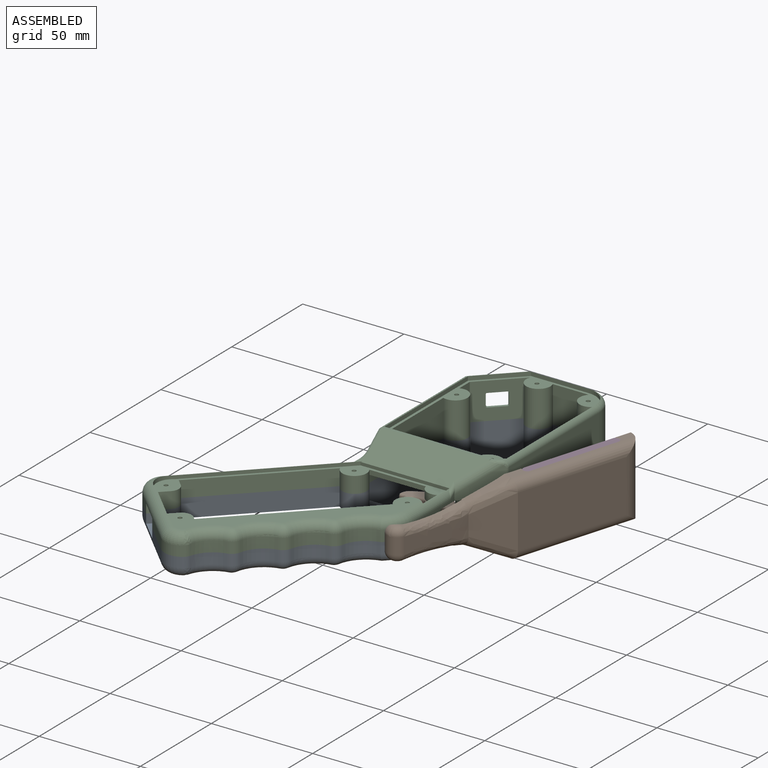
[diagram: assembled view]
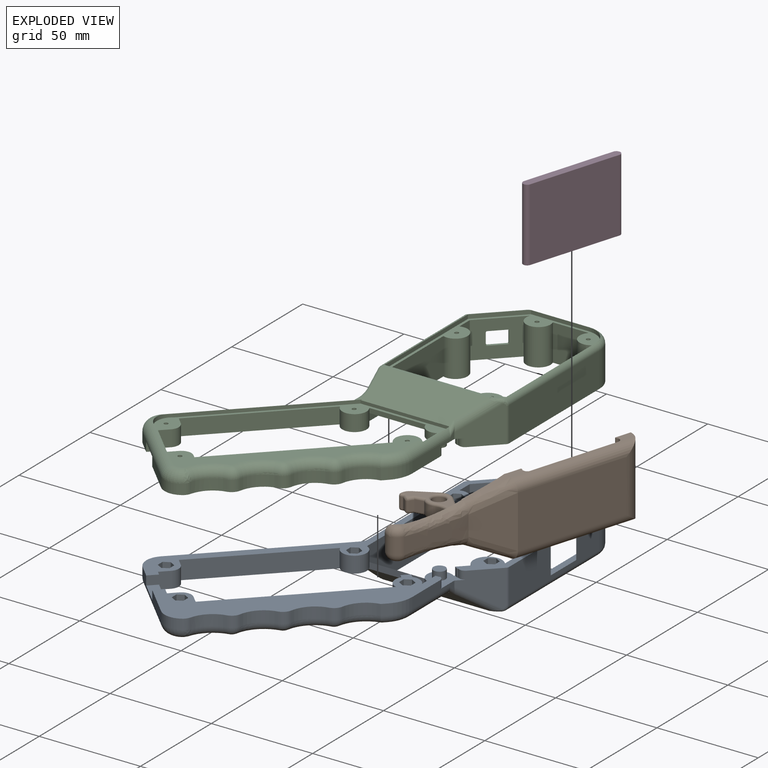
[diagram: exploded view]
GUIDED TOUR — MATED ASSEMBLY WITH SUBASSEMBLIES (Onshape document 577f6a3ee4b021f10afeb08b, AutoMate assembly 577f6a3ee4b021f10afeb08b_17257736771b3b4b7b890b39_b17cec0c7d5b5c49a6e8328c_default)

This assembly has 8 component occurrences arranged in 4 top-level units: 2 individual components plus 2 subassemblies (S0, S1). The tour has two levels: first the top level, where each subassembly is treated as one rigid unit; then each subassembly is toured internally in its own section (nesting deeper than one subassembly level is flattened into its subassembly's section).

Components are labeled P0..P7 across the whole record; subassembly units are labeled S0..S1. A mate is a constraint between two units; its type names the relative motion it leaves free:
  FASTENED — locks the two components together rigidly (no relative motion),
  REVOLUTE — leaves rotation about the listed axis free (a hinge).
Axis/direction vectors are unit vectors and 'through' points are millimeter coordinates, both in the assembly's world frame.

TOP-LEVEL MATES (between units; each subassembly's internal mates are listed in its own section)
  1. FASTENED "Fastened 4": P5 <-> P2, direction (0.000, 0.000, -1.000) through (50.64, 50.34, -117.17) mm
  2. REVOLUTE "Revolute 1": P2 <-> S1, axis (0.000, 0.000, 1.000) through (19.60, 32.45, -131.42) mm
  3. FASTENED "Fastened 3": S1 <-> S0, direction (0.000, 0.000, -1.000) through (-17.86, 34.20, -135.42) mm

TOP-LEVEL ASSEMBLY ORDER
  1. P2 — the base component [order heuristic]
  2. S1 [order heuristic]
  3. P5 [order heuristic]
  4. S0 [order heuristic]
Order-tag legend:
  [order heuristic] — this assembly is geometrically interlocked (no collision-free removal order exists), so components are listed in mate-graph order; insertion feasibility is not verified.

Of the 8 component occurrences, 1 carries the full construction recipe — the FeatureScript program that regenerates the part's solid from scratch; the rest are supplied as boundary geometry only. Each toured unit is shown spotlighted twice — assembled, then exploded with a leader line back to its socket (green = recipe-attached component, orange = geometry-only, blue = subassembly unit; the rest desaturated gray).
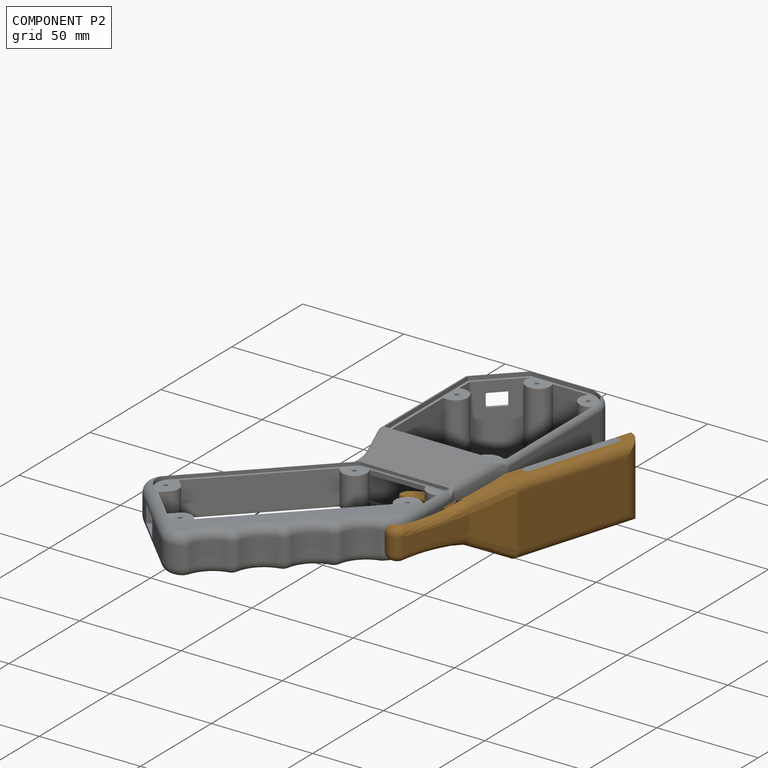
[diagram: component P2 — assembled]
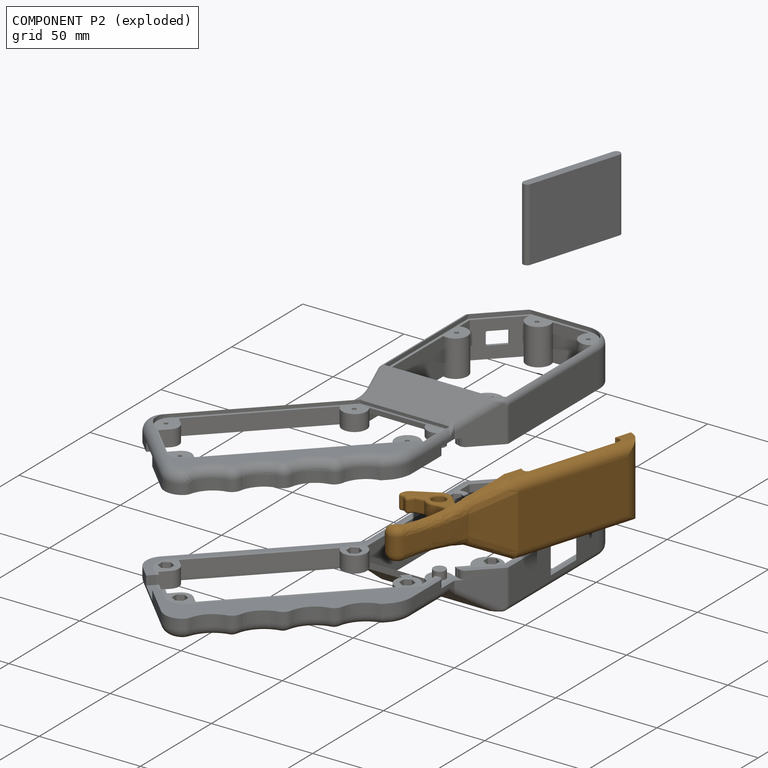
[diagram: component P2 — exploded]
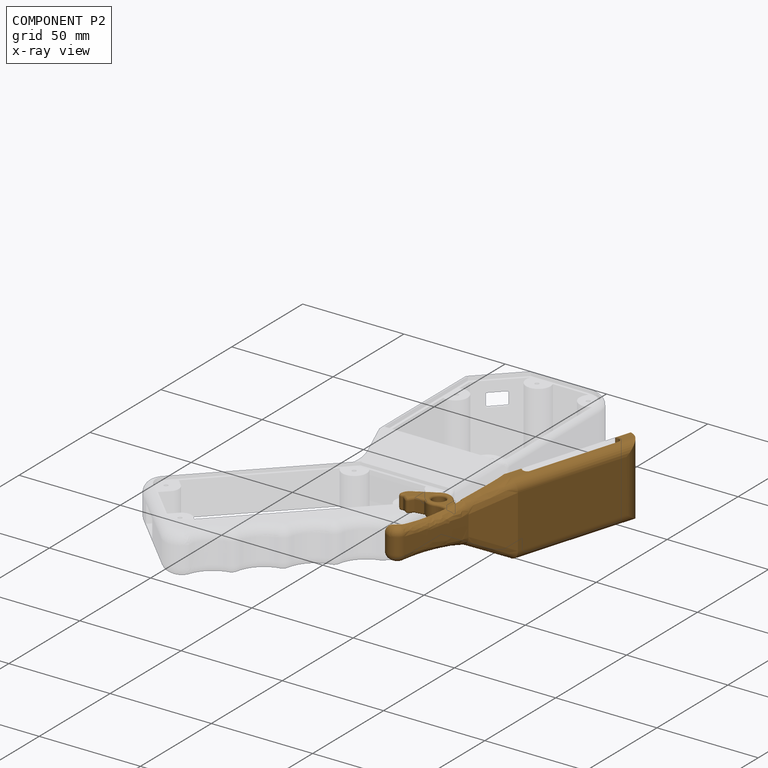
[diagram: component P2 — x-ray view]
COMPONENT P2 — geometry summary (no construction recipe available for this part):
  bounding box: 125.0 x 47.5 x 46.2 mm
  B-rep topology: 1 solid, 109 faces, 542 edges
  volume: 21061 mm^3 (8% of its bounding box)
  symmetry: mirror-symmetric across its z mid-plane
Held by: FASTENED mate "Fastened 4" to P5; REVOLUTE mate "Revolute 1" to P3.
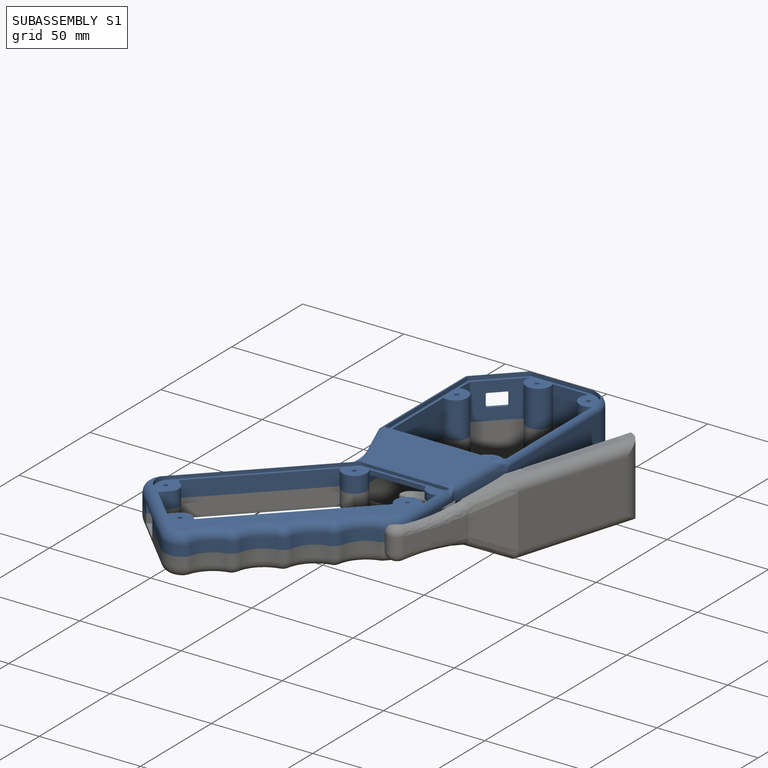
[diagram: subassembly S1 — assembled]
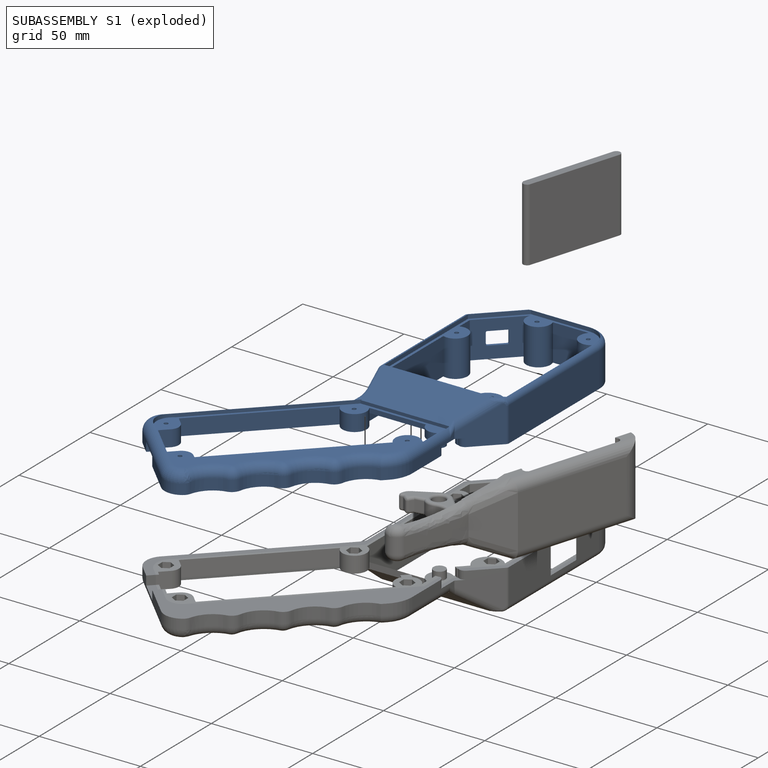
[diagram: subassembly S1 — exploded]
SUBASSEMBLY S1 — 3 components (P3, P6, P7), of which 0 recipe-attached; toured below.
Held by: REVOLUTE mate "Revolute 1" to P2; FASTENED mate "Fastened 3" to S0.
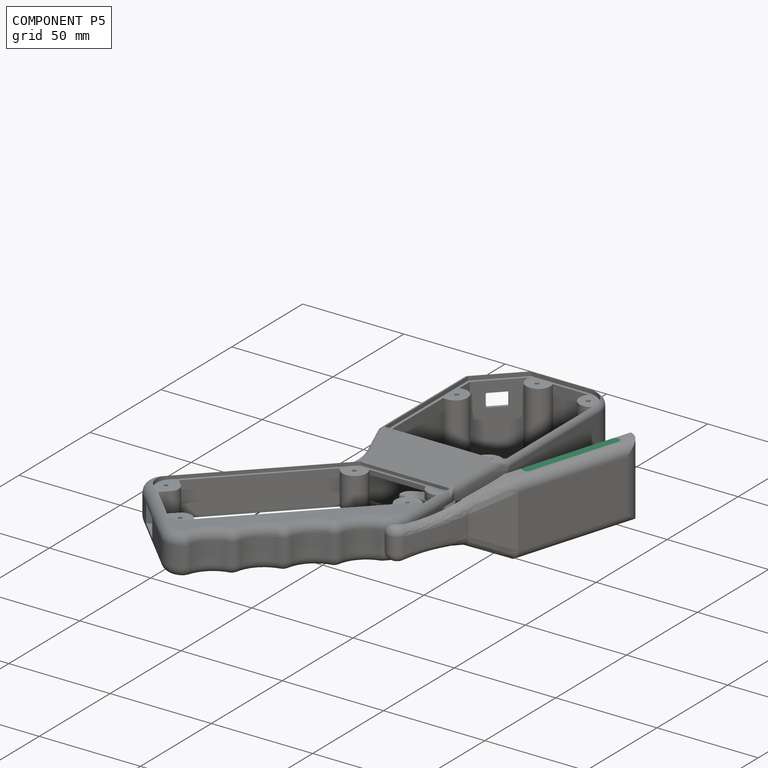
[diagram: component P5 — assembled]
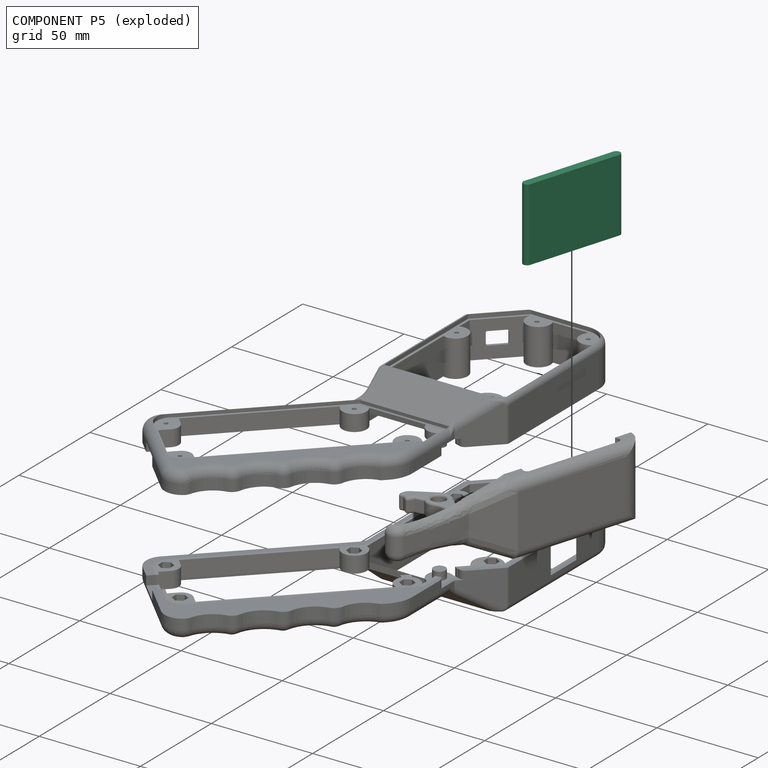
[diagram: component P5 — exploded]
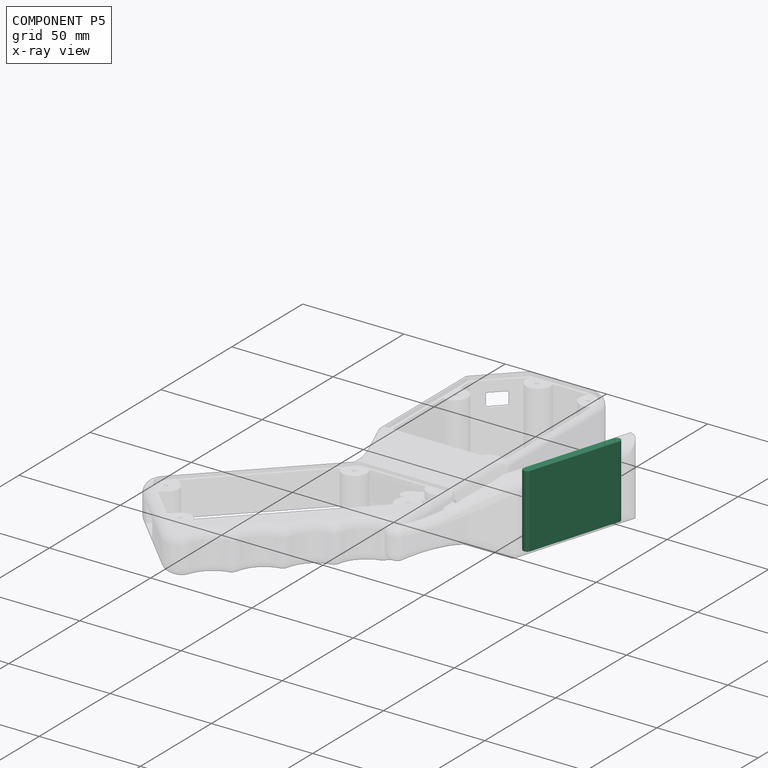
[diagram: component P5 — x-ray view]
COMPONENT P5 — recipe-attached (CADFS 00192847, mesh-verified: the recipe's output STEP matches this component's geometry to below the mesh-comparison resolution (tessellation chordal tolerance ~0.0924 mm)).
Held by: FASTENED mate "Fastened 4" to P2.
Construction recipe (FeatureScript — the CAD program that rebuilds this solid; sketch coordinates are in the units given by the * unit suffixes, e.g. mm):

FeatureScript 1732;
import(path : "onshape/std/geometry.fs", version : "1732.0");
import(path : "onshape/std/common.fs", version : "1732.0");
const mm = millimeter;
const VERTEX = EntityType.VERTEX;
const EDGE = EntityType.EDGE;
const FACE = EntityType.FACE;
const BODY = EntityType.BODY;
function v(x, y){return vector(x, y);}
function OD(order){return orderDisambiguation(order);}
function OSD(set){return originalSetDisambiguation(set);}
function TD(topology){return topologyDisambiguation(topology);}
function TDD(query){return trueDependencyDisambiguation(query);}
function sQuery(a, b, c) {return sketchEntityQuery(a, b, c);}

annotation { "Feature Type Name" : "Feature", "Feature Type Description" : "" }
export const myFeature = defineFeature(function(context is Context, id is Id, definition is map)
    precondition{}
    {
        {
            var Q0;
            Q0=qCreatedBy(makeId("Top.planeOp"),FACE);
            var sketch = newSketch(context, id + "F0", { "sketchPlane" : qUnion([Q0])});
            skArc(sketch, "E0", {"start": v(2, 22.4) * mm, "mid": v(0, 24.4) * mm, "end": v(-2, 22.4) * mm});
            skArc(sketch, "E1", {"start": v(-2, -23.4) * mm, "mid": v(0, -25.4) * mm, "end": v(2, -23.4) * mm});
            skLineSegment(sketch, "E2", {"start": v(2, 22.4) * mm, "end": v(2, -23.4) * mm});
            skLineSegment(sketch, "E3", {"start": v(-2, 22.4) * mm, "end": v(-2, -23.4) * mm});
            skSolve(sketch);
        }
        {
            var Q0;
            Q0=makeQuery(id+"F0.imprint","IMPRINT",FACE,{"disambiguationData":[TD([[makeQuery(id+"F0.imprint","IMPRINT",EDGE,{"derivedFrom":sQuery(id+"F0.wireOp",EDGE,"E0")}),1.0]])]});
            extrude(context, id + "F1", {"entities" : qUnion([Q0]), "depth" : 36 * mm, "symmetric" : true});
        }
    });
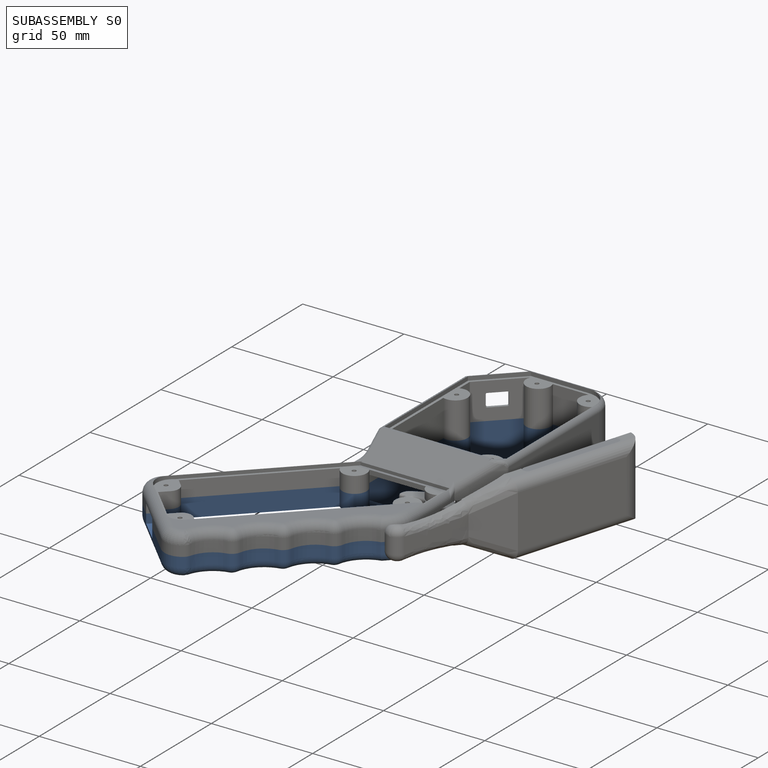
[diagram: subassembly S0 — assembled]
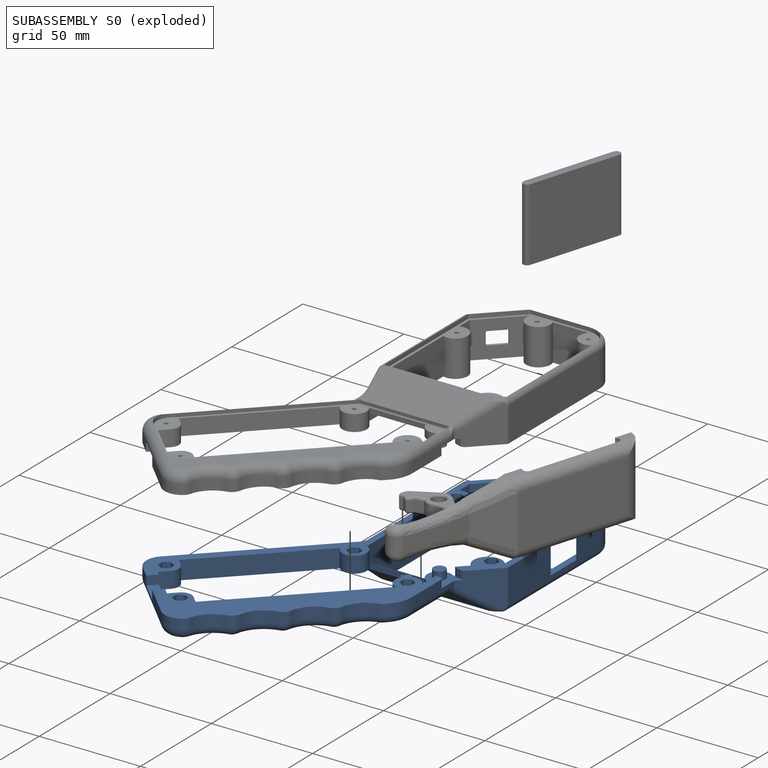
[diagram: subassembly S0 — exploded]
SUBASSEMBLY S0 — 3 components (P0, P1, P4), of which 0 recipe-attached; toured below.
Held by: FASTENED mate "Fastened 3" to S1.
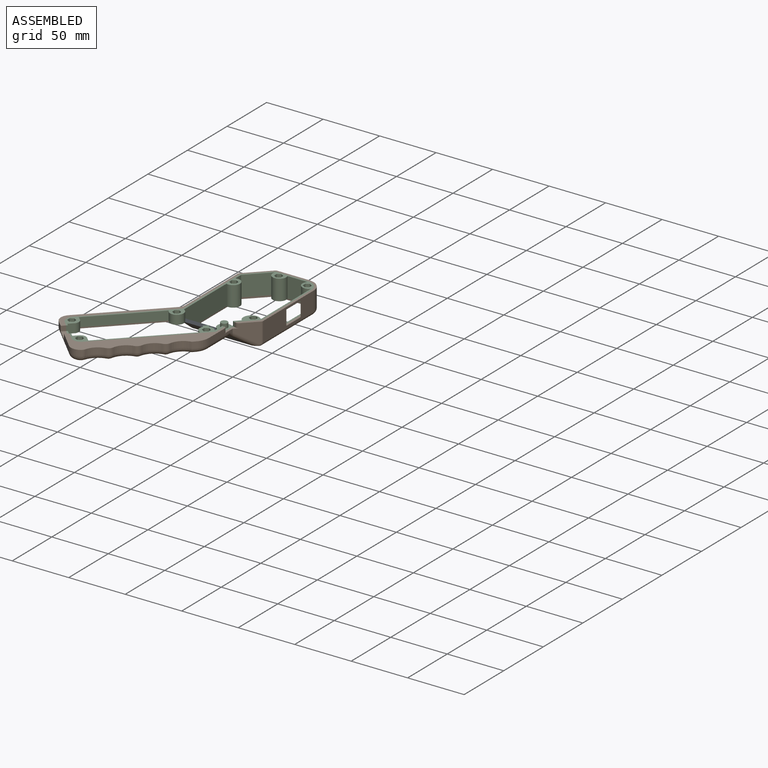
[diagram: subassembly S0 — assembled view]
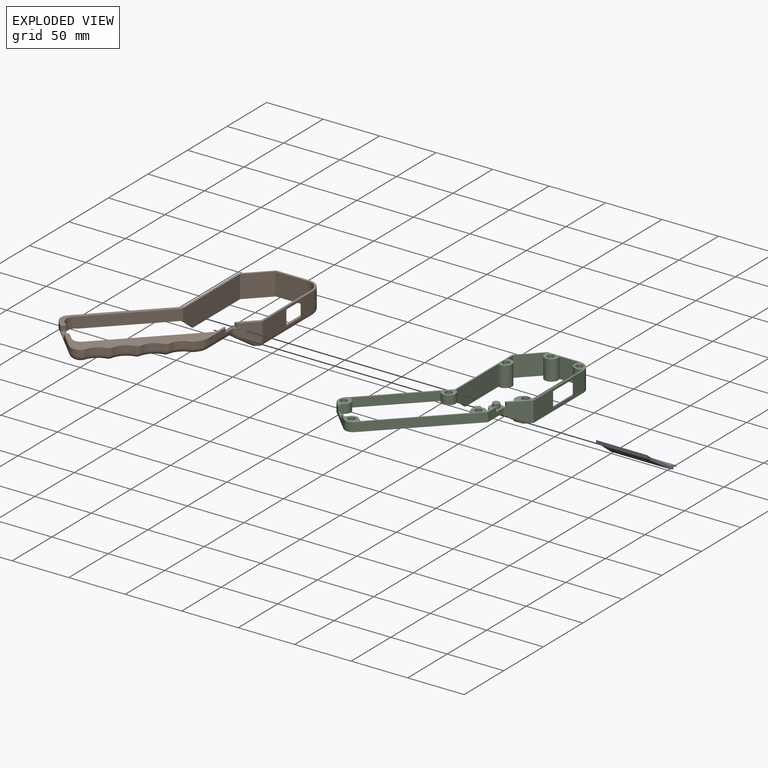
[diagram: subassembly S0 — exploded view]
SUBASSEMBLY S0 TOUR — 3 components, shown here in isolation at its own camera.

INTERNAL MATES
  1. FASTENED "Fastened 2": P0 <-> P1, direction (-1.000, 0.000, 0.000) through (-17.86, 34.20, -145.89) mm
  2. FASTENED "Fastened 1": P1 <-> P4, direction (-1.000, 0.000, 0.000) through (39.94, 50.94, -135.42) mm
  3. FASTENED "Fastened 2": P0 <-> P1, direction (-1.000, 0.000, 0.000) through (-17.86, 34.20, -145.89) mm
  4. FASTENED "Fastened 1": P1 <-> P4, direction (-1.000, 0.000, 0.000) through (39.94, 50.94, -135.42) mm

ASSEMBLY ORDER (within the subassembly)
  1. P1 — the base component [order heuristic]
  2. P4 — core [order heuristic]
  3. P0 [order verified]
(P0 verified with a relaxed clearance tolerance: the source model stores slight part interference there.)
Order-tag legend:
  [order verified] — this step's position reverses a verified removal order: the component was checked to insert without passing through the ones already placed.
  [order heuristic] — the first 2 components form the assembly's core: parts whose collision-free extraction could not be verified, listed in mate-graph order.
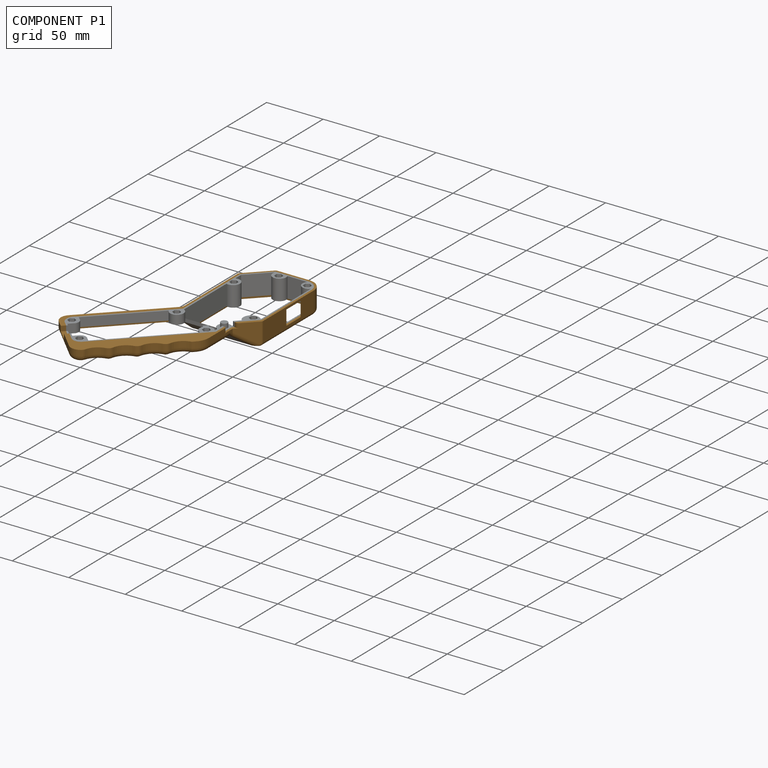
[diagram: component P1 — assembled]
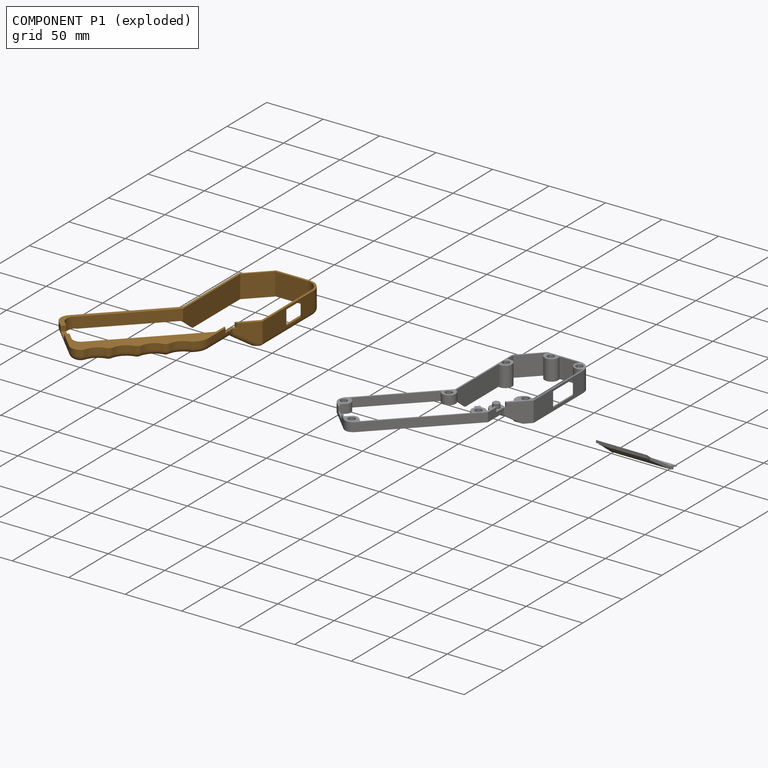
[diagram: component P1 — exploded]
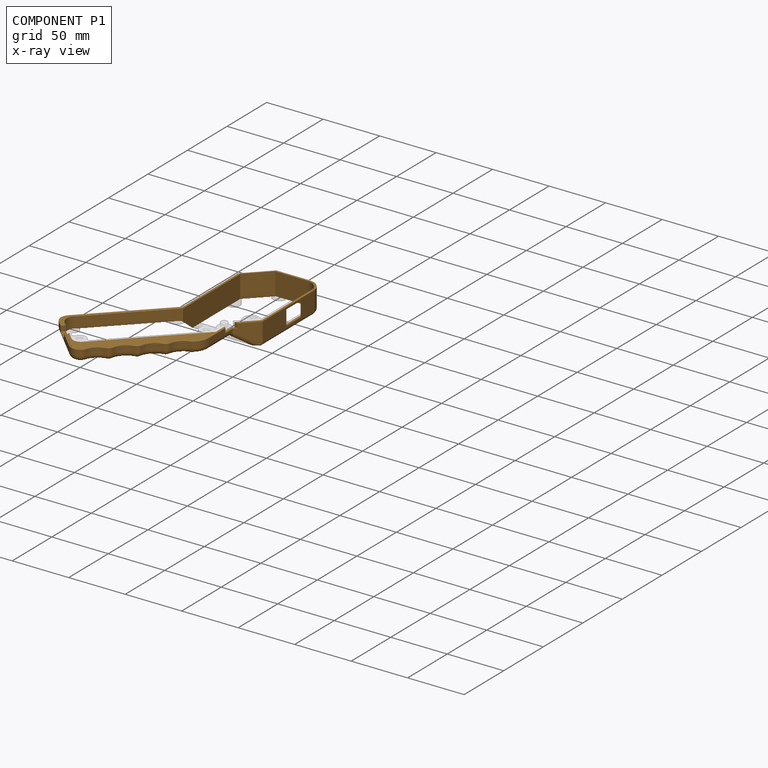
[diagram: component P1 — x-ray view]
COMPONENT P1 — geometry summary (no construction recipe available for this part):
  bounding box: 195.8 x 125.0 x 21.9 mm
  B-rep topology: 1 solid, 89 faces, 476 edges
  volume: 25069 mm^3 (5% of its bounding box)
Held by: FASTENED mate "Fastened 2" to P0; FASTENED mate "Fastened 1" to P4; FASTENED mate "Fastened 2" to P0; FASTENED mate "Fastened 1" to P4.
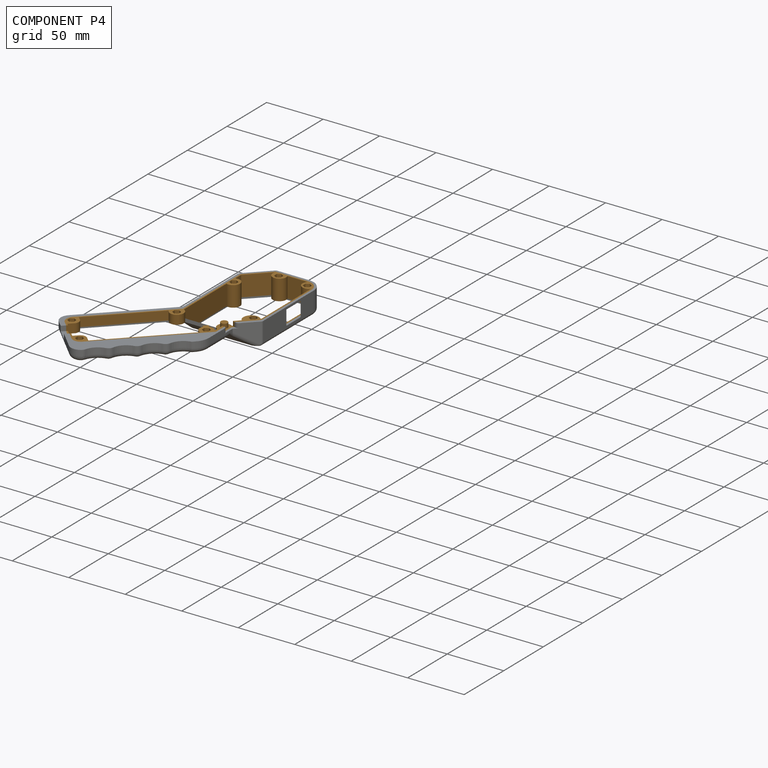
[diagram: component P4 — assembled]
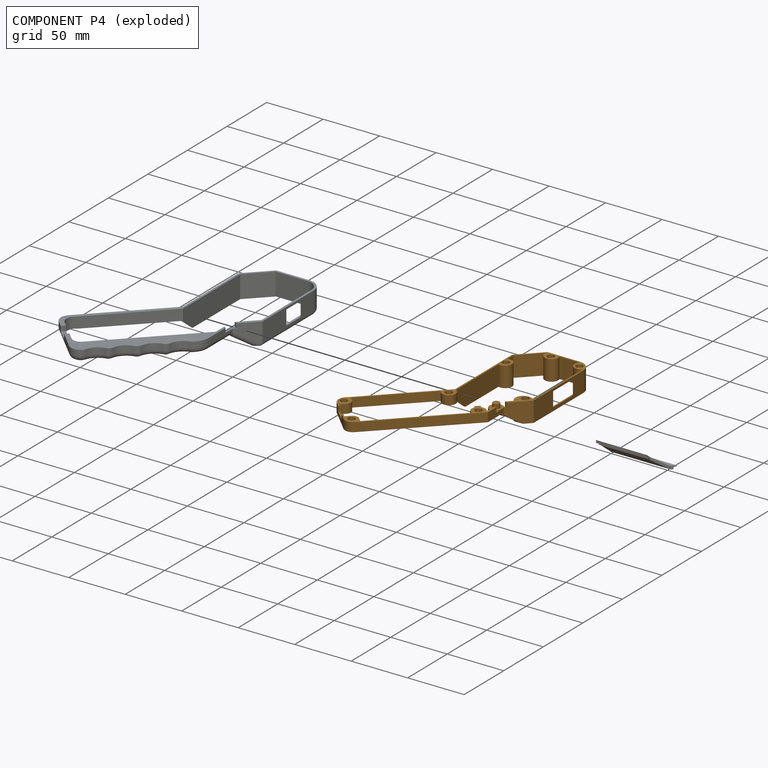
[diagram: component P4 — exploded]
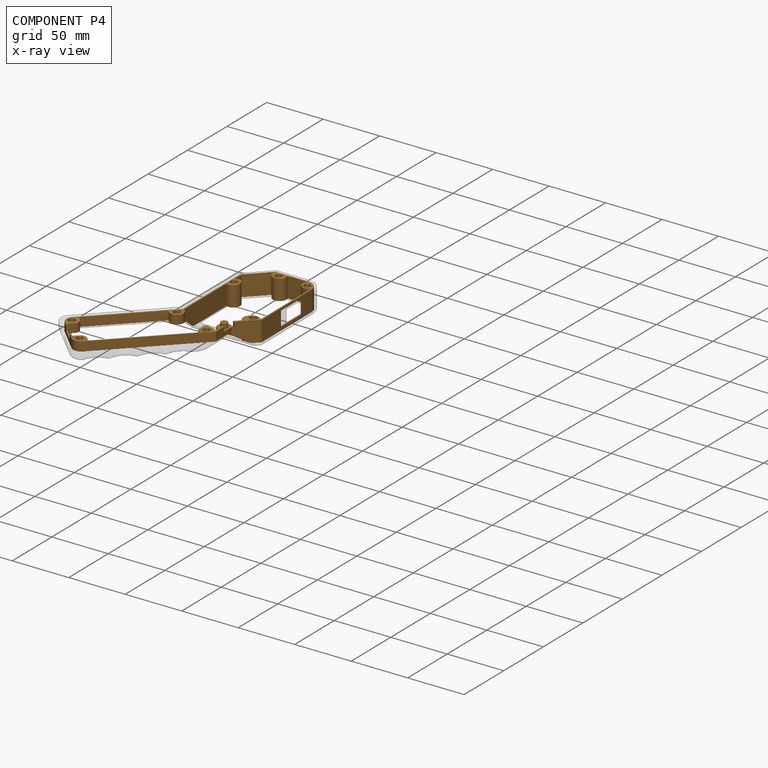
[diagram: component P4 — x-ray view]
COMPONENT P4 — geometry summary (no construction recipe available for this part):
  bounding box: 180.7 x 117.2 x 18.0 mm
  B-rep topology: 1 solid, 121 faces, 678 edges
  volume: 15112 mm^3 (4% of its bounding box)
Held by: FASTENED mate "Fastened 1" to P1; FASTENED mate "Fastened 1" to P1.
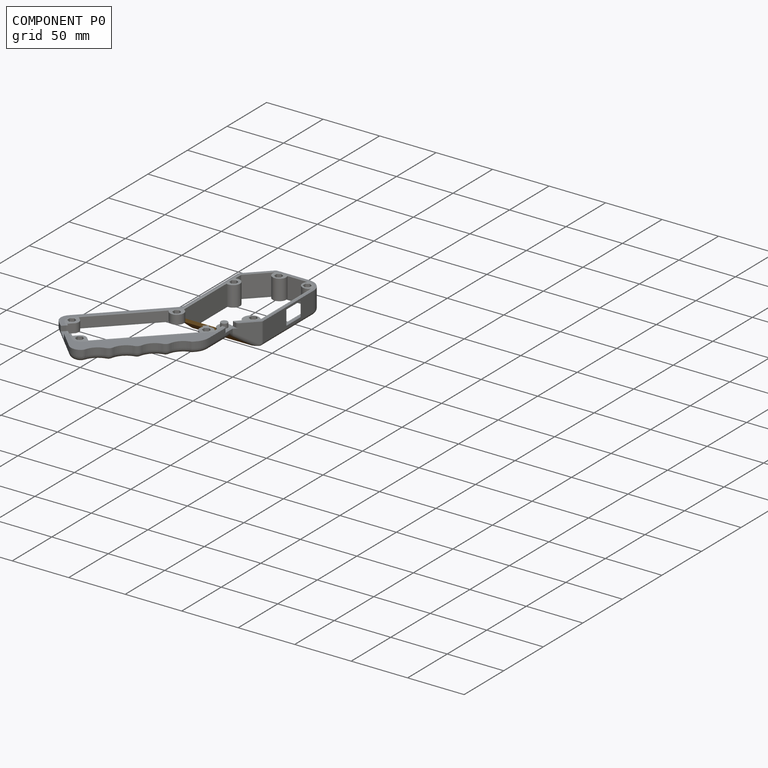
[diagram: component P0 — assembled]
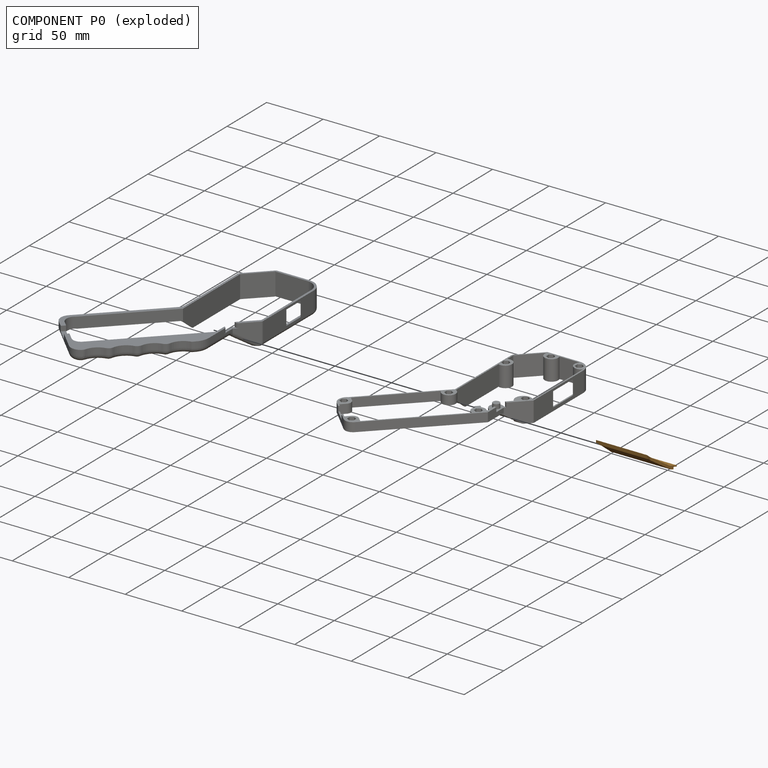
[diagram: component P0 — exploded]
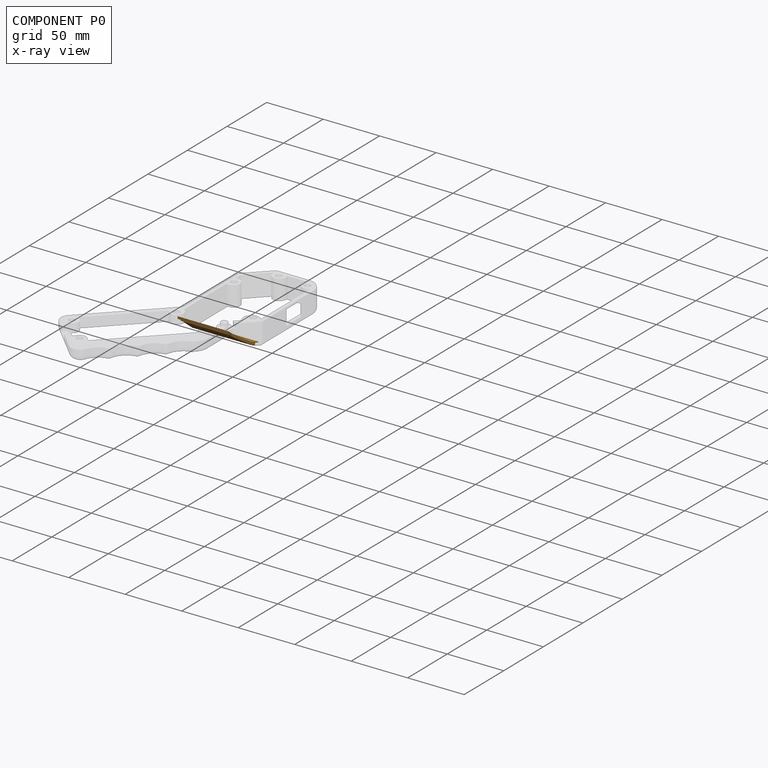
[diagram: component P0 — x-ray view]
COMPONENT P0 — geometry summary (no construction recipe available for this part):
  bounding box: 58.9 x 17.9 x 14.3 mm
  B-rep topology: 1 solid, 15 faces, 78 edges
  volume: 2029 mm^3 (13% of its bounding box)
Held by: FASTENED mate "Fastened 2" to P1; FASTENED mate "Fastened 2" to P1.
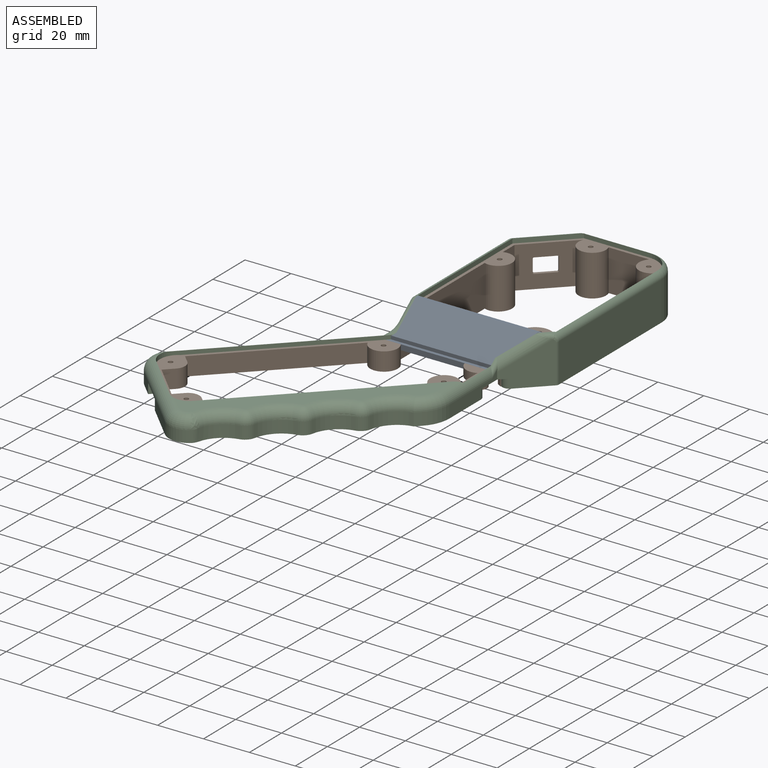
[diagram: subassembly S1 — assembled view]
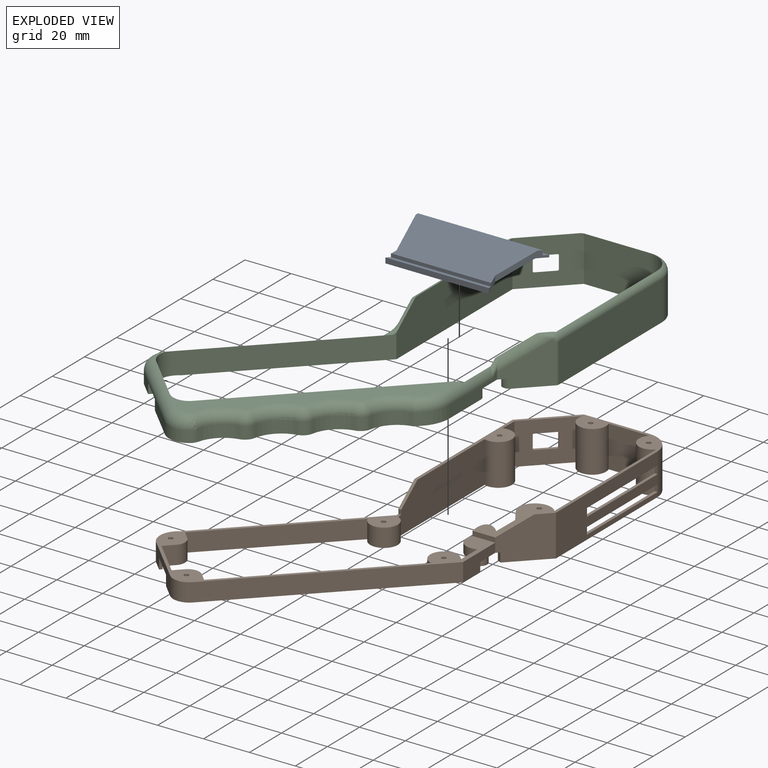
[diagram: subassembly S1 — exploded view]
SUBASSEMBLY S1 TOUR — 3 components, shown here in isolation at its own camera.

INTERNAL MATES
  1. FASTENED "Fastened 1": P6 <-> P7, direction (0.000, 0.000, -1.000) through (-17.86, 34.20, -135.42) mm
  2. FASTENED "Fastened 2": P3 <-> P7, direction (0.000, -0.621, 0.784) through (-17.86, 34.20, -124.94) mm

ASSEMBLY ORDER (within the subassembly)
  1. P7 — the base component [order heuristic]
  2. P6 — core [order heuristic]
  3. P3 [order verified]
(P3 verified with a relaxed clearance tolerance: the source model stores slight part interference there.)
Order-tag legend:
  [order verified] — this step's position reverses a verified removal order: the component was checked to insert without passing through the ones already placed.
  [order heuristic] — the first 2 components form the assembly's core: parts whose collision-free extraction could not be verified, listed in mate-graph order.
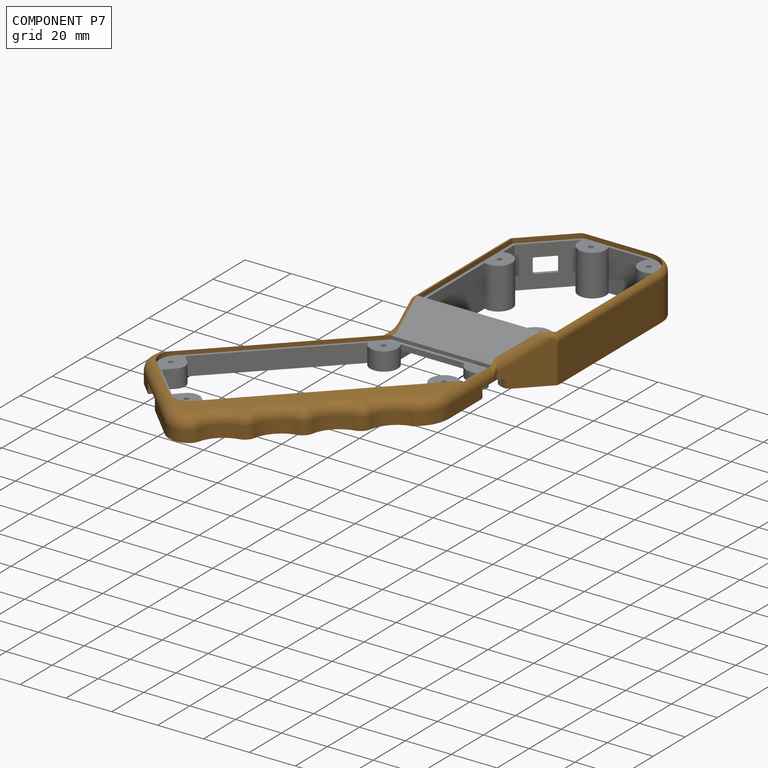
[diagram: component P7 — assembled]
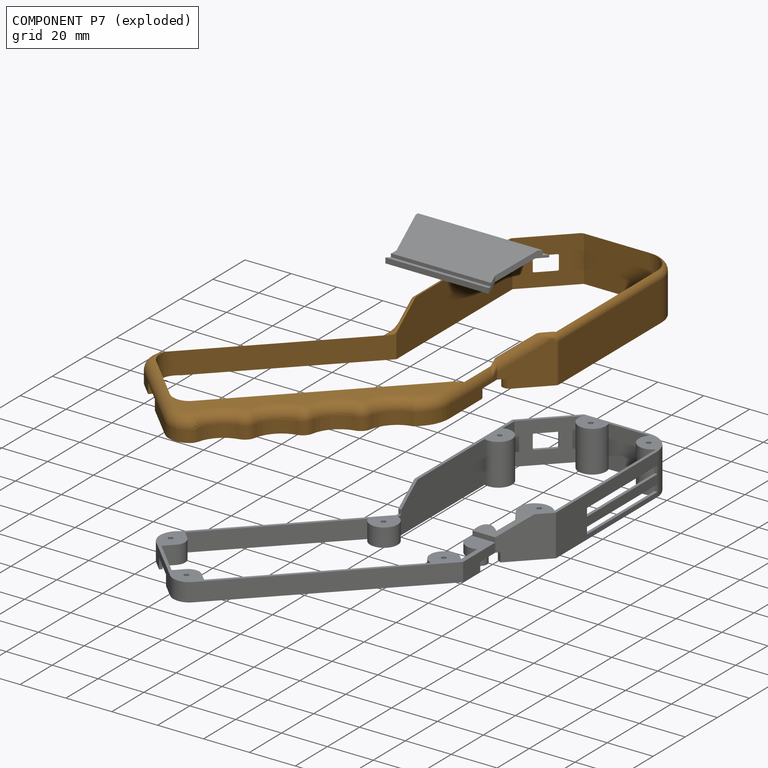
[diagram: component P7 — exploded]
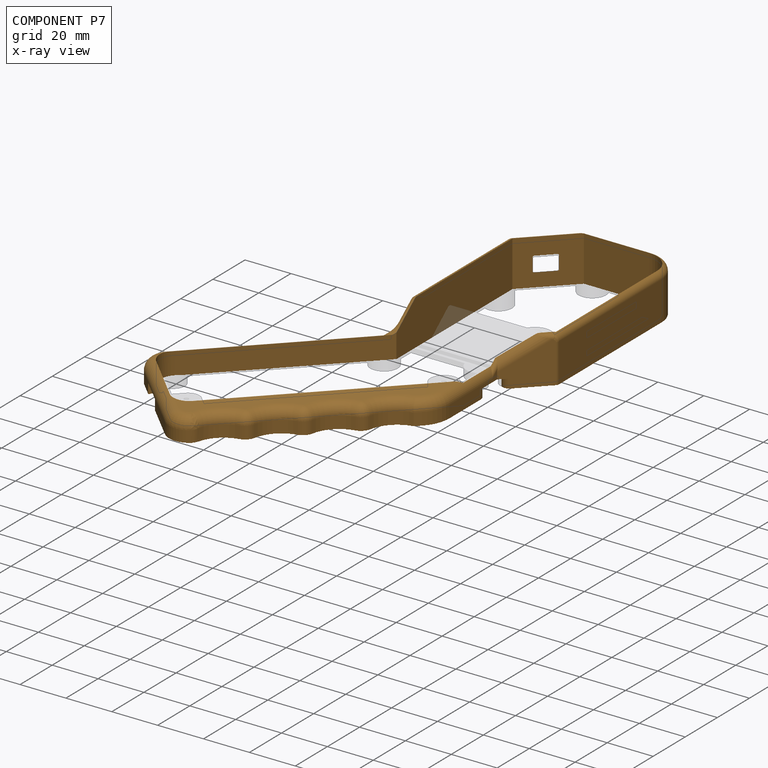
[diagram: component P7 — x-ray view]
COMPONENT P7 — geometry summary (no construction recipe available for this part):
  bounding box: 195.8 x 125.0 x 21.9 mm
  B-rep topology: 1 solid, 93 faces, 500 edges
  volume: 25441 mm^3 (5% of its bounding box)
Held by: FASTENED mate "Fastened 1" to P6; FASTENED mate "Fastened 2" to P3.
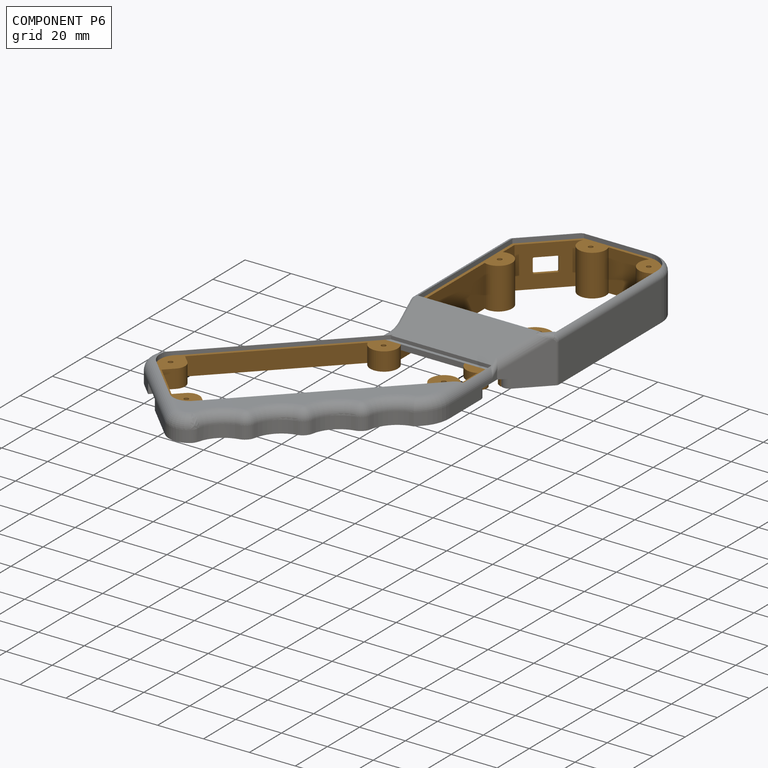
[diagram: component P6 — assembled]
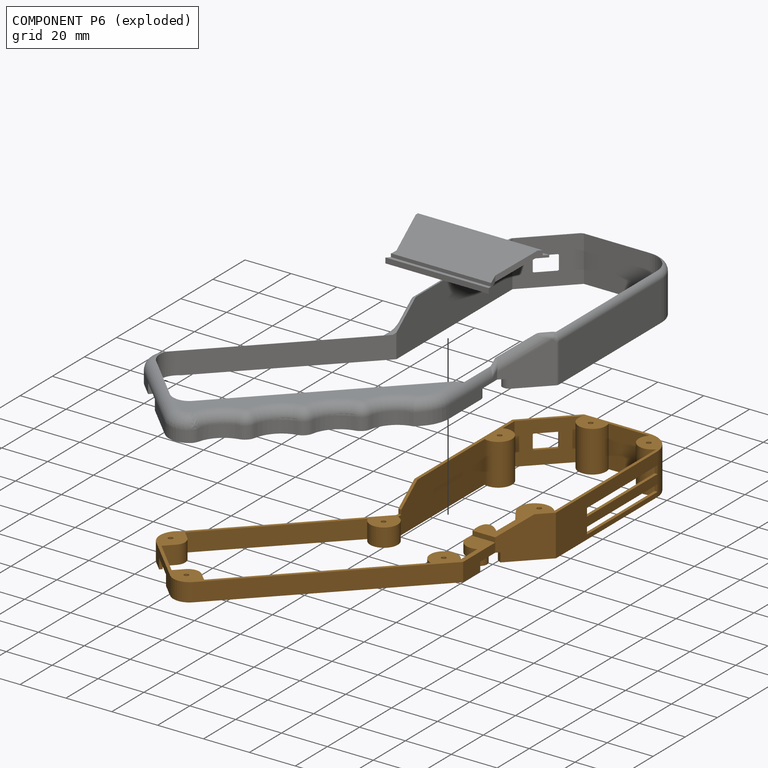
[diagram: component P6 — exploded]
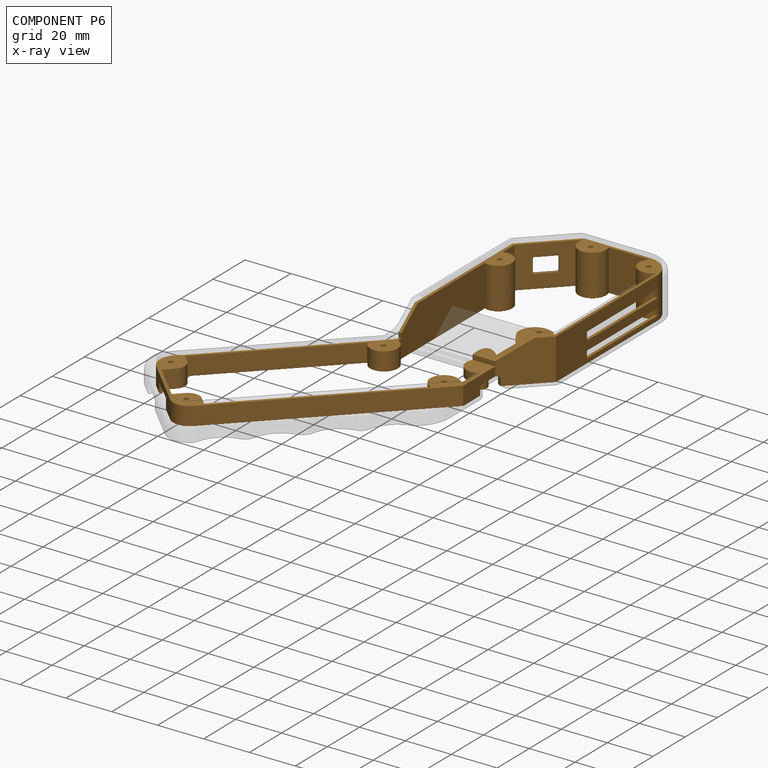
[diagram: component P6 — x-ray view]
COMPONENT P6 — geometry summary (no construction recipe available for this part):
  bounding box: 180.7 x 117.2 x 18.0 mm
  B-rep topology: 1 solid, 133 faces, 762 edges
  volume: 15119 mm^3 (4% of its bounding box)
Held by: FASTENED mate "Fastened 1" to P7.
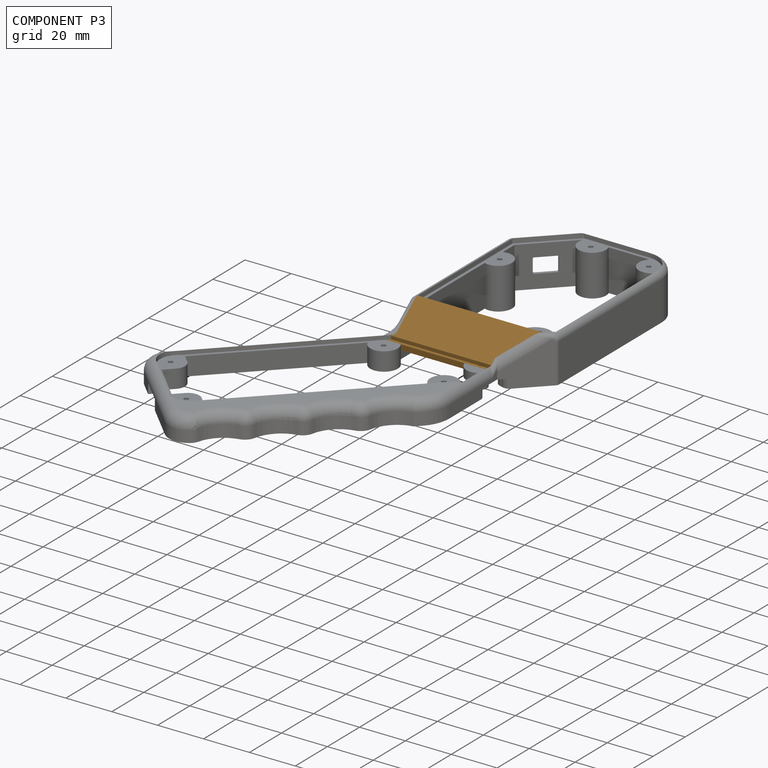
[diagram: component P3 — assembled]
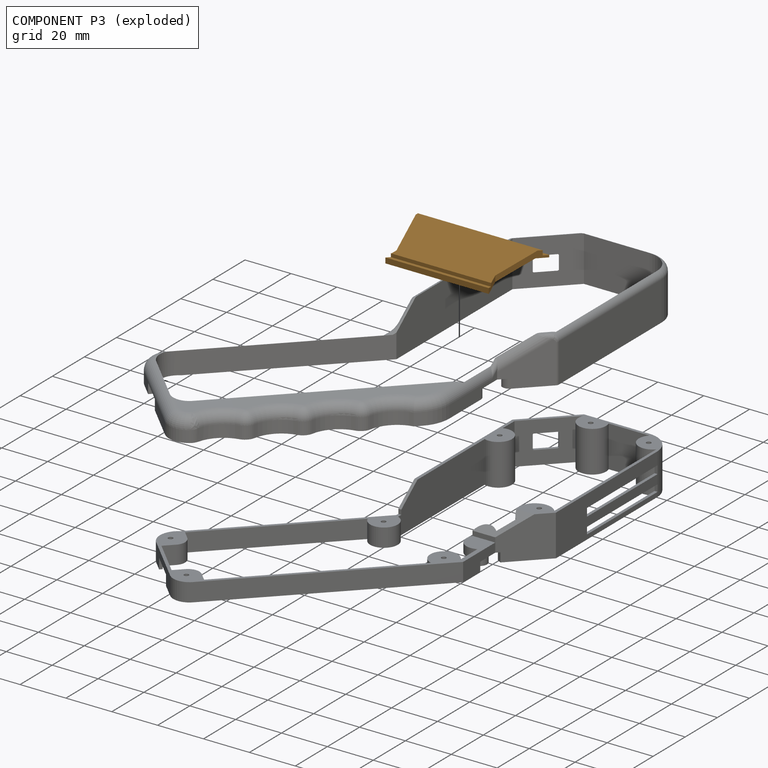
[diagram: component P3 — exploded]
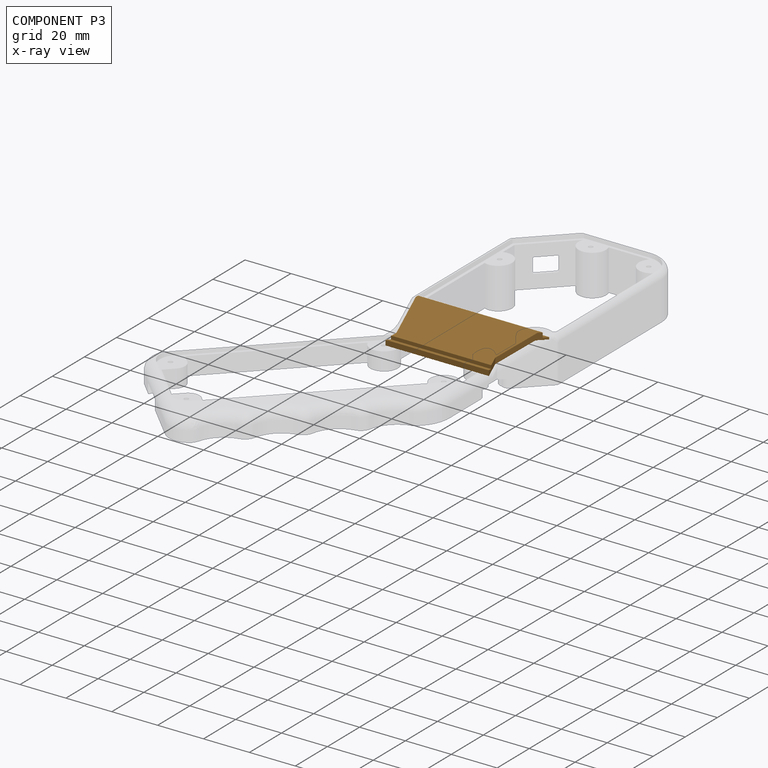
[diagram: component P3 — x-ray view]
COMPONENT P3 — geometry summary (no construction recipe available for this part):
  bounding box: 58.9 x 17.9 x 14.3 mm
  B-rep topology: 1 solid, 15 faces, 78 edges
  volume: 2029 mm^3 (13% of its bounding box)
Held by: FASTENED mate "Fastened 2" to P7.
PROVENANCE & LICENSES
Assembly (occurrences, transforms, mates, per-part STEP geometry): AutoMate dataset, Zenodo record 7776208, CC0.
Construction recipes: CADFS (HuggingFace VladPyatov/CADFS, CC-BY-4.0, layered over the ABC dataset), FeatureScript reconstruction programs keyed by ABC model id.
Join: ABC meta listings map ABC model id -> Onshape documentId; within a shared document, parts are matched by geometric signature (bounding-box dims + volume at 0.1% relative tolerance, exact B-rep face/solid counts).
Verification: 1 of this assembly's 8 components carries a recipe attachment, and every attachment is mesh-verified: the CADFS STEP and the AutoMate member STEP were compared as meshes in their shared local frame (symmetric sampled-point-to-mesh distance); worst across the 1 attachment: below the mesh-comparison resolution (tessellation chordal tolerance ~0.0924 mm) on a 62 mm part.
Renders: orthographic iso camera (az 35 / el 25); the floor grid conveys scale (grid pitch printed in each image; no ruler). In the exploded view each component is displaced by its stored offset vector: the offsets alone carry the explosion direction (mate normal/axis signs are not orientation cues and do not encode it), and separation distances are assigned per mate-chain, not proportionally to assembly-order depth.
